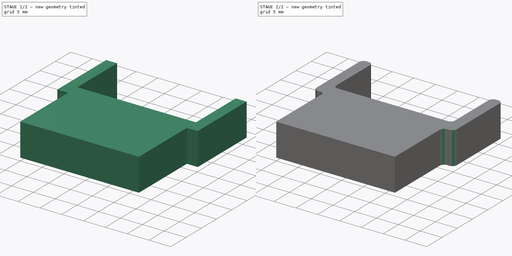
[diagram: build sequence overview — one tinted view per stage of 2, left to right]
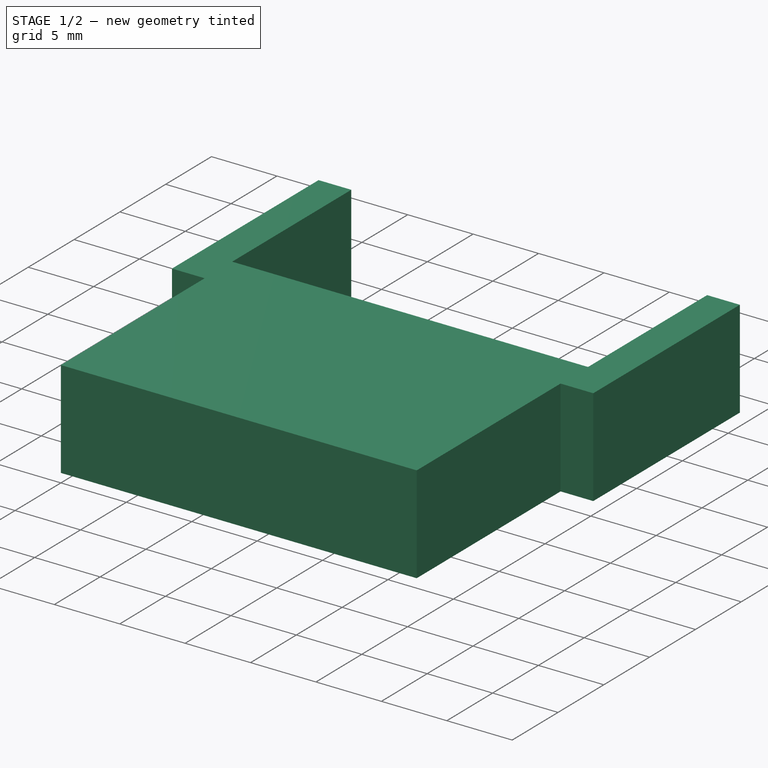
[diagram: stage 1 of 2 — iso view after this stage's code; geometry added in this stage tinted green]
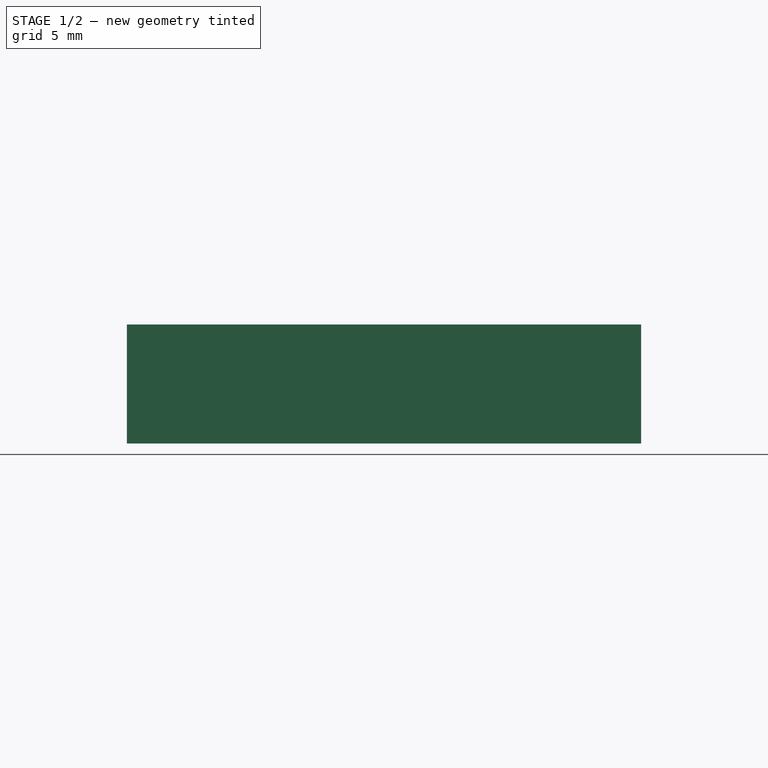
[diagram: stage 1 of 2 — front view after this stage's code; geometry added in this stage tinted green]
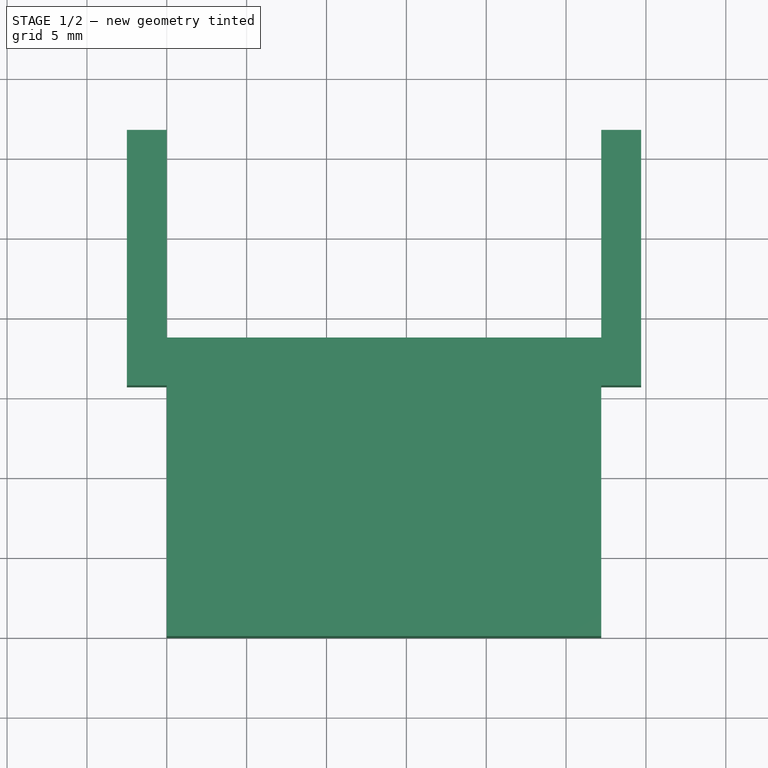
[diagram: stage 1 of 2 — top view after this stage's code; geometry added in this stage tinted green]
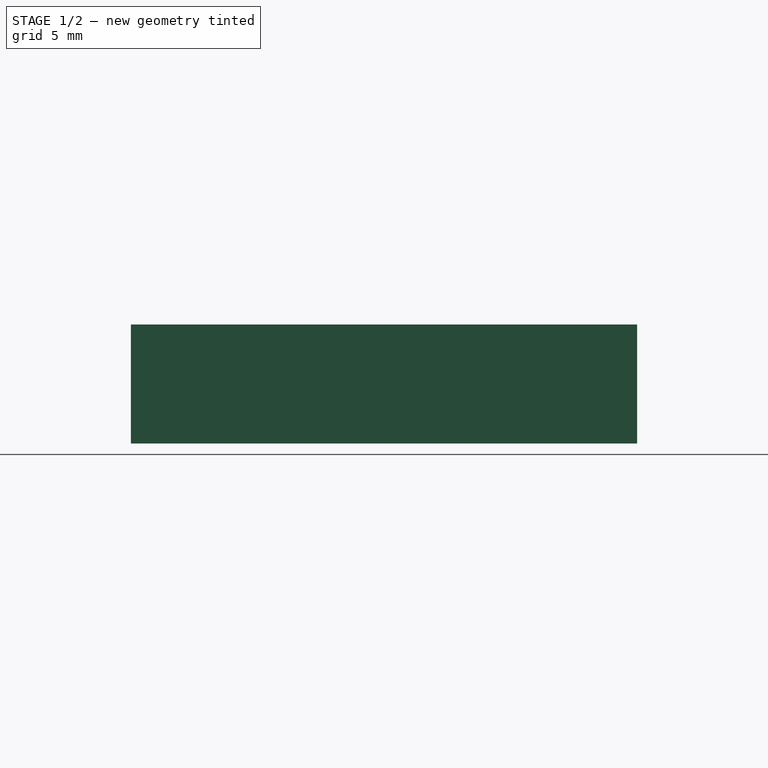
[diagram: stage 1 of 2 — right view after this stage's code; geometry added in this stage tinted green]
FCSTD DOCUMENT  (FreeCAD 0.19R24276 (Git))
Label: HalterUSBStick_mitRundungen
License: All rights reserved
LicenseURL: http://en.wikipedia.org/wiki/All_rights_reserved
objects: Sketcher::SketchObject×1, PartDesign::Pad×1, PartDesign::Fillet×1, PartDesign::Body×1
note: 6 computed .brp shape members not serialized (recipe doc carries the construction recipe); baked Part::Feature solids carry a one-line shape summary decoded from their .brp

FEATURE [Sketcher::SketchObject] Sketch
  FullyConstrained = true
  MapMode = 5
  Support = -> [XY_Plane]
  expr: Constraints[34] = 23 - 2.5 - 3 - 1.8
  sketch-geometry (12):
    g0: LineSegment StartX=0 StartY=0 StartZ=0 EndX=27.2 EndY=0 EndZ=0
    g1: LineSegment StartX=27.2 StartY=0 StartZ=0 EndX=27.2 EndY=15.7 EndZ=0
    g2: LineSegment StartX=0 StartY=15.7 StartZ=0 EndX=0 EndY=0 EndZ=0
    g3: LineSegment StartX=27.2 StartY=15.7 StartZ=0 EndX=29.7 EndY=15.7 EndZ=0
    g4: LineSegment StartX=29.7 StartY=15.7 StartZ=0 EndX=29.7 EndY=31.7 EndZ=0
    g5: LineSegment StartX=29.7 StartY=31.7 StartZ=0 EndX=27.2 EndY=31.7 EndZ=0
    g6: LineSegment StartX=27.2 StartY=31.7 StartZ=0 EndX=27.2 EndY=18.7 EndZ=0
    g7: LineSegment StartX=27.2 StartY=18.7 StartZ=0 EndX=0 EndY=18.7 EndZ=0
    g8: LineSegment StartX=0 StartY=18.7 StartZ=0 EndX=0 EndY=31.7 EndZ=0
    g9: LineSegment StartX=0 StartY=31.7 StartZ=0 EndX=-2.5 EndY=31.7 EndZ=0
    g10: LineSegment StartX=-2.5 StartY=31.7 StartZ=0 EndX=-2.5 EndY=15.7 EndZ=0
    g11: LineSegment StartX=-2.5 StartY=15.7 StartZ=0 EndX=0 EndY=15.7 EndZ=0
  constraints (35):
    c: Coincident(g0,g1)
    c: Coincident(g2,g0)
    c: Horizontal(g0)
    c: Vertical(g1)
    c: Vertical(g2)
    c: Coincident(g0,g-1)
    c: Coincident(g3,g1)
    c: Horizontal(g3)
    c: Coincident(g3,g4)
    c: Vertical(g4)
    c: Coincident(g4,g5)
    c: Horizontal(g5)
    c: Coincident(g5,g6)
    c: Vertical(g6)
    c: Coincident(g6,g7)
    c: Horizontal(g7)
    c: Coincident(g7,g8)
    c: Vertical(g8)
    c: Coincident(g8,g9)
    c: Horizontal(g9)
    c: Coincident(g9,g10)
    c: Vertical(g10)
    c: Coincident(g10,g11)
    c: Horizontal(g11)
    c: DistanceY(g8,g8) = 13
    c: Equal(g8,g6)
    c: DistanceY(g2,g7) = 3
    c: Equal(g10,g4)
    c: DistanceX(g7,g7) = 27.2
    c: DistanceX(g0,g0) = 27.2
    c: DistanceX(g9,g9) = 2.5
    c: DistanceX(g5,g5) = 2.5
    c: DistanceX(g11,g11) = 2.5
    c: Coincident(g11,g2)
    c: DistanceY(g2,g2) = 15.7
FEATURE [PartDesign::Pad] Pad
  Direction = (1,1,1)
  Length = 7.45
  Length2 = 100
  Profile = -> Sketch
  Type = 0
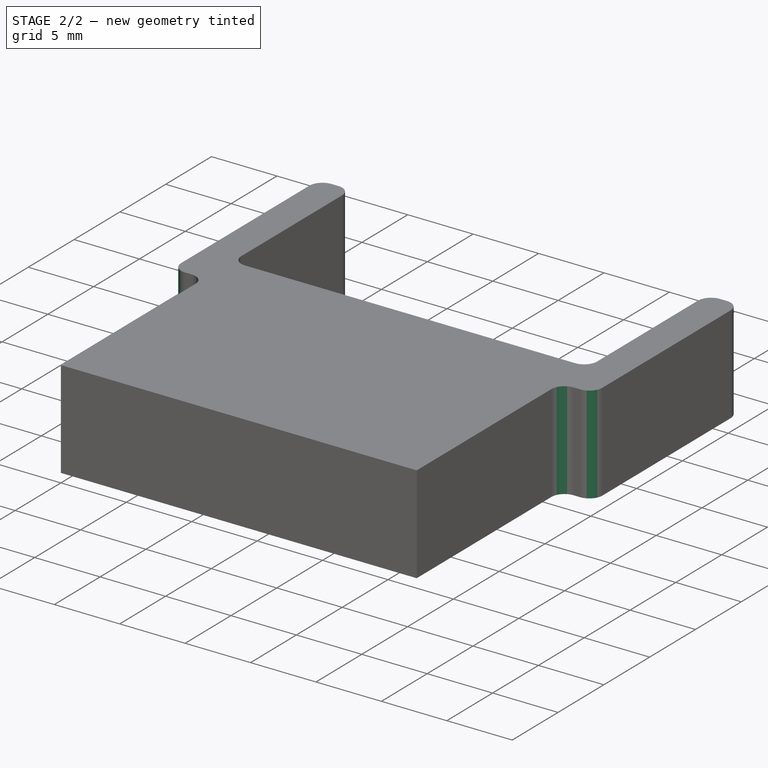
[diagram: stage 2 of 2 — iso view after this stage's code; geometry added in this stage tinted green]
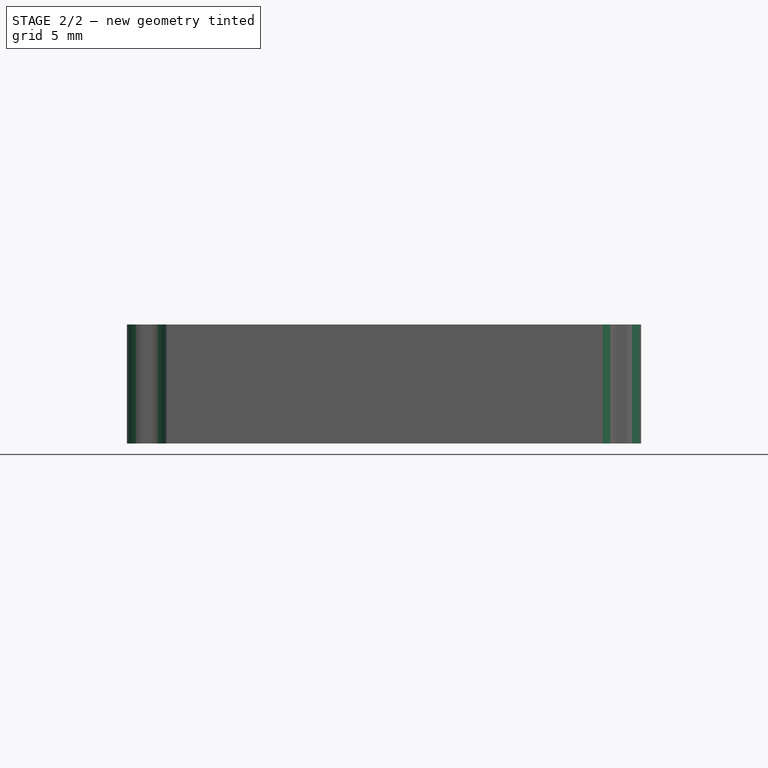
[diagram: stage 2 of 2 — front view after this stage's code; geometry added in this stage tinted green]
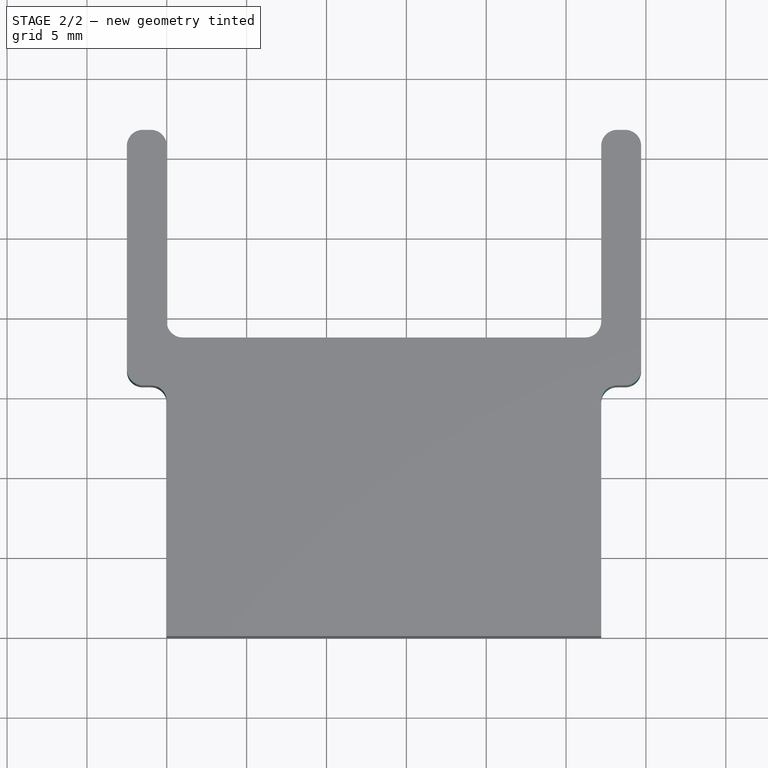
[diagram: stage 2 of 2 — top view after this stage's code; geometry added in this stage tinted green]
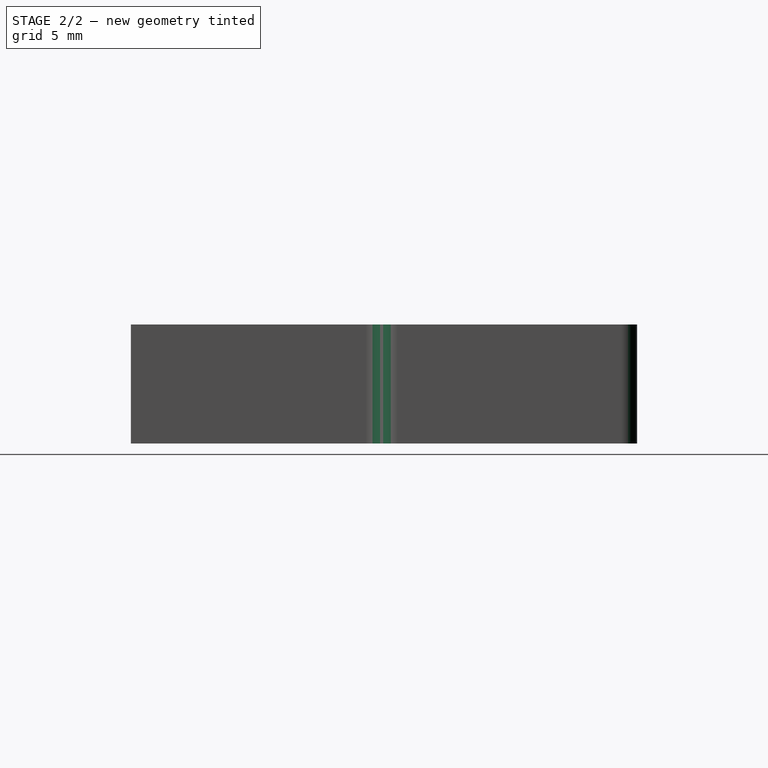
[diagram: stage 2 of 2 — right view after this stage's code; geometry added in this stage tinted green]
FEATURE [PartDesign::Fillet] Fillet
  Base = -> Pad [Edge20,Edge23,Edge26,Edge14,Edge11,Edge8,Edge17,Edge29,Edge32,Edge5]
  BaseFeature = -> Pad
  Radius = 1
  SupportTransform = false
FEATURE [PartDesign::Body] Body
  Group = -> [Sketch,Pad,Fillet]
  Origin = -> Origin
  Tip = -> Fillet
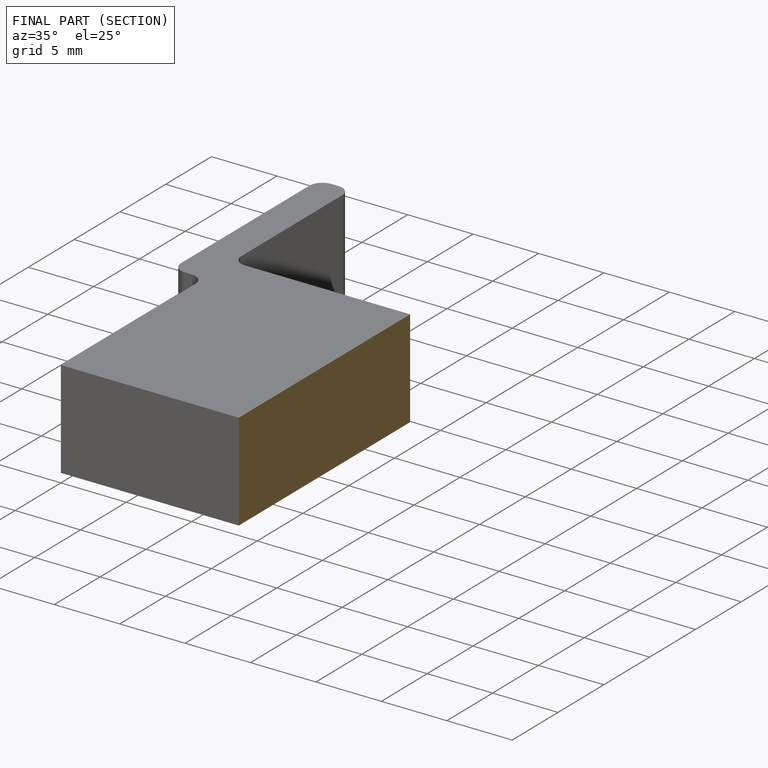
[diagram: finished part — half-section view (interior)]
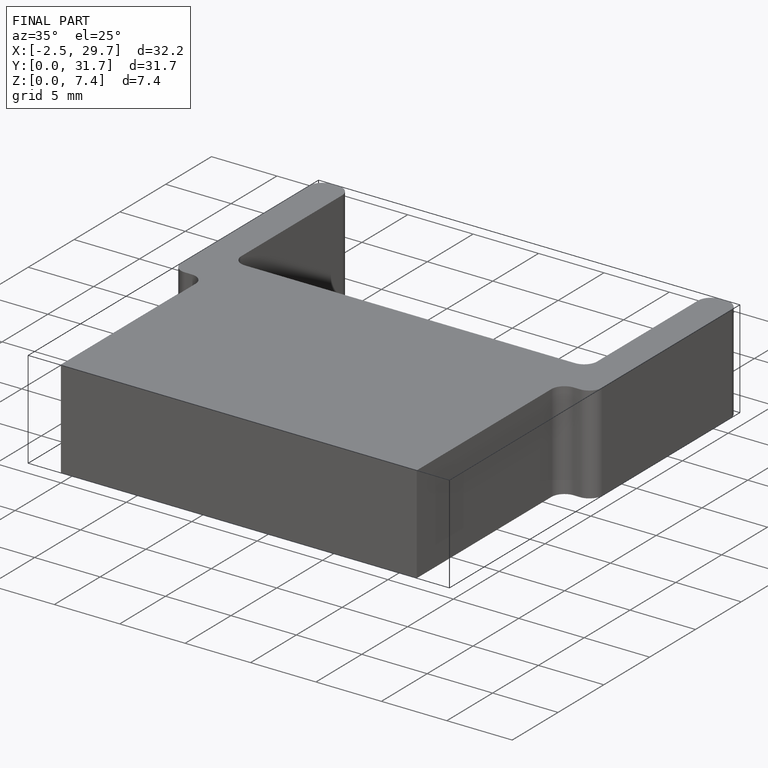
[diagram: finished part — iso view with bounding-box wireframe]
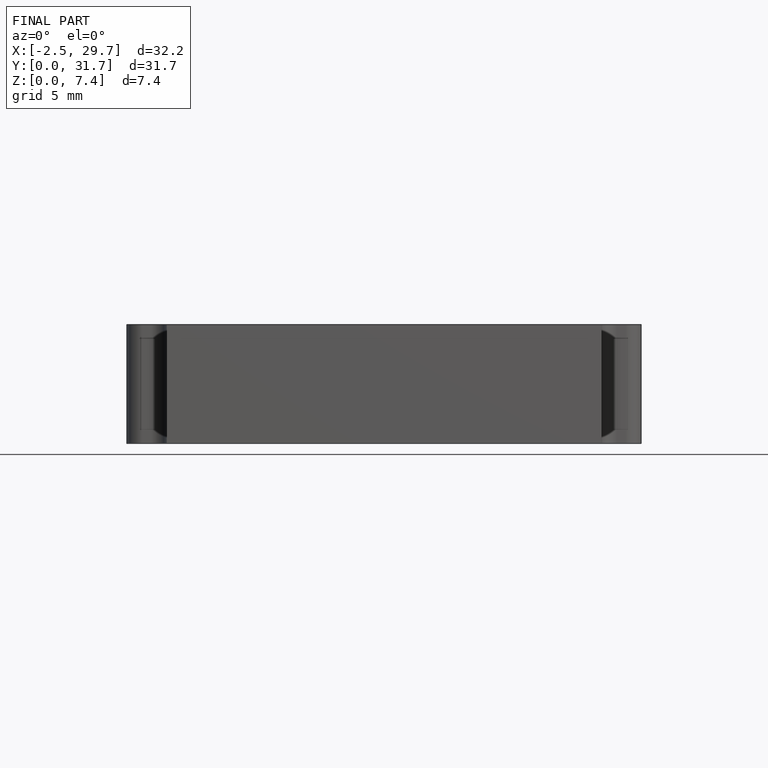
[diagram: finished part — front view with bounding-box wireframe]
